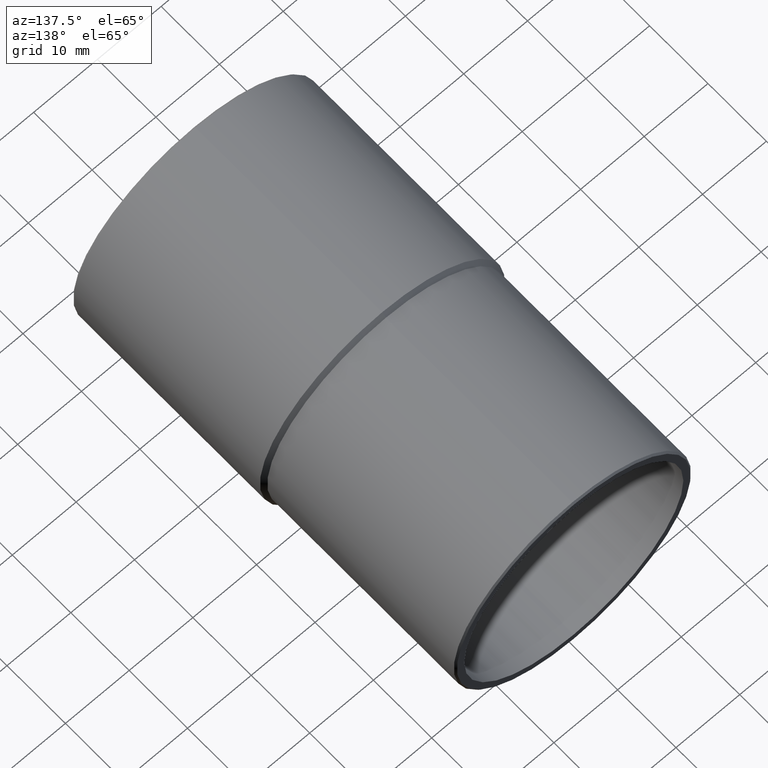
[diagram: clean part render]
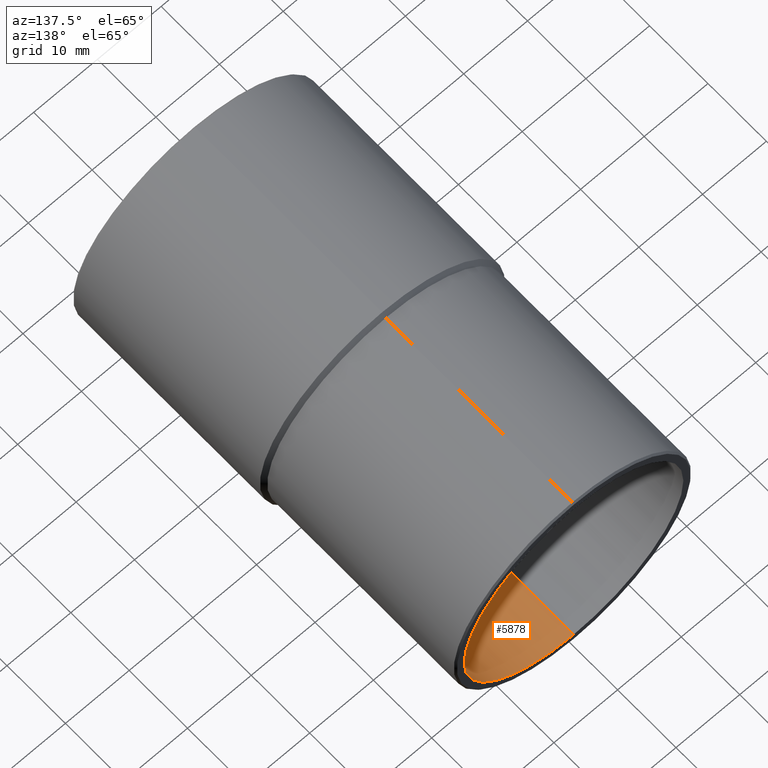
[diagram: same view with one face highlighted and labeled with its STEP entity id]
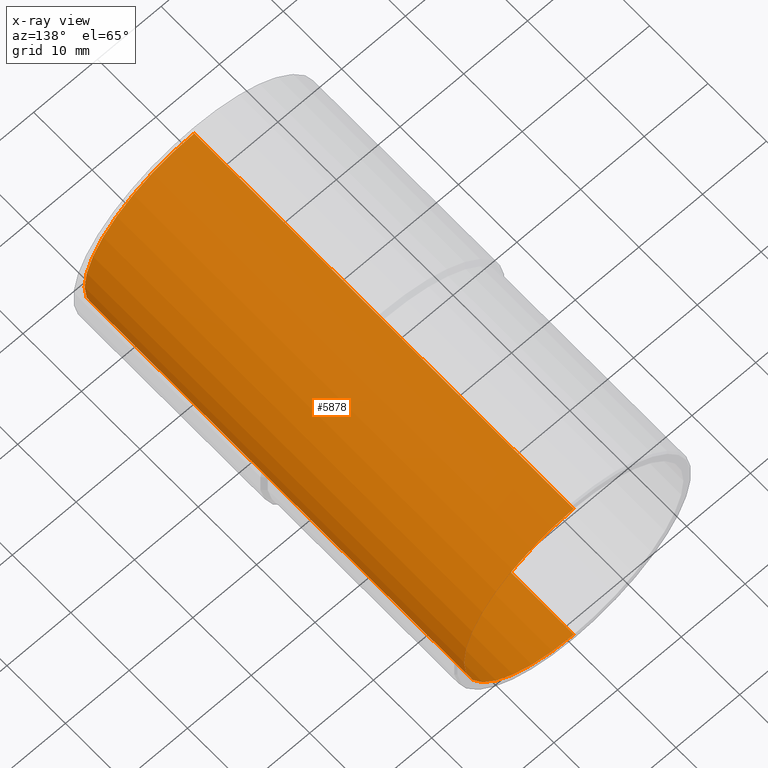
[diagram: x-ray of the same camera — body ghosted, the highlighted face saturated]
A machine part, auxiliary view. The second image highlights one B-rep face of the part: STEP entity #5878.
The next image is the same camera in x-ray: the body ghosted, the highlighted face saturated — about 0% of this face is hidden behind the body in this view.
In plain terms, the highlighted cylindrical surface (partial cylindrical patch) has radius 17.2 mm, axis along (-0, -1, -0).
Its self-contained STEP definition (entity closure, byte-faithful):
#394 = DIRECTION ( 'NONE',  ( 0.0000000000000000000, 0.0000000000000000000, -1.000000000000000000 ) ) ;
#420 = DIRECTION ( 'NONE',  ( 0.0000000000000000000, 0.0000000000000000000, -1.000000000000000000 ) ) ;
#633 = VERTEX_POINT ( 'NONE', #4557 ) ;
#870 = VERTEX_POINT ( 'NONE', #5437 ) ;
#2295 = CARTESIAN_POINT ( 'NONE',  ( 0.0000000000000000000, 32.50000000000000000, 0.0000000000000000000 ) ) ;
#2316 = VERTEX_POINT ( 'NONE', #8674 ) ;
#2327 = LINE ( 'NONE', #9421, #7053 ) ;
#2469 = ORIENTED_EDGE ( 'NONE', *, *, #5700, .T. ) ;
#2515 = DIRECTION ( 'NONE',  ( -0.0000000000000000000, -1.000000000000000000, -0.0000000000000000000 ) ) ;
#2612 = AXIS2_PLACEMENT_3D ( 'NONE', #3056, #8344, #420 ) ;
#3056 = CARTESIAN_POINT ( 'NONE',  ( 0.0000000000000000000, 32.50000000000000000, 0.0000000000000000000 ) ) ;
#3173 = DIRECTION ( 'NONE',  ( 0.0000000000000000000, 0.0000000000000000000, -1.000000000000000000 ) ) ;
#4025 = EDGE_CURVE ( 'NONE', #870, #2316, #2327, .T. ) ;
#4074 = VERTEX_POINT ( 'NONE', #6081 ) ;
#4343 = ORIENTED_EDGE ( 'NONE', *, *, #10457, .F. ) ;
#4557 = CARTESIAN_POINT ( 'NONE',  ( 0.0000000000000000000, 32.50000000000000000, -17.19999999999999900 ) ) ;
#4604 = DIRECTION ( 'NONE',  ( -0.0000000000000000000, -1.000000000000000000, -0.0000000000000000000 ) ) ;
#4646 = CARTESIAN_POINT ( 'NONE',  ( 0.0000000000000000000, 32.50000000000000000, -17.19999999999999900 ) ) ;
#4697 = ORIENTED_EDGE ( 'NONE', *, *, #11219, .T. ) ;
#5437 = CARTESIAN_POINT ( 'NONE',  ( 2.106392494533447400E-015, 32.50000000000000000, 17.19999999999999900 ) ) ;
#5550 = CIRCLE ( 'NONE', #10279, 17.19999999999999900 ) ;
#5681 = DIRECTION ( 'NONE',  ( 0.0000000000000000000, -1.000000000000000000, 0.0000000000000000000 ) ) ;
#5700 = EDGE_CURVE ( 'NONE', #633, #4074, #8109, .T. ) ;
#5812 = ORIENTED_EDGE ( 'NONE', *, *, #4025, .F. ) ;
#5878 = ADVANCED_FACE ( 'NONE', ( #9348 ), #11400, .F. ) ;
#6081 = CARTESIAN_POINT ( 'NONE',  ( 0.0000000000000000000, -32.50000000000000000, -17.19999999999999900 ) ) ;
#6963 = AXIS2_PLACEMENT_3D ( 'NONE', #2295, #8451, #3173 ) ;
#7053 = VECTOR ( 'NONE', #2515, 1000.000000000000000 ) ;
#7855 = VECTOR ( 'NONE', #4604, 1000.000000000000000 ) ;
#8109 = LINE ( 'NONE', #4646, #7855 ) ;
#8344 = DIRECTION ( 'NONE',  ( -0.0000000000000000000, -1.000000000000000000, -0.0000000000000000000 ) ) ;
#8451 = DIRECTION ( 'NONE',  ( 0.0000000000000000000, -1.000000000000000000, 0.0000000000000000000 ) ) ;
#8674 = CARTESIAN_POINT ( 'NONE',  ( 2.106392494533447400E-015, -32.50000000000000000, 17.19999999999999900 ) ) ;
#9348 = FACE_OUTER_BOUND ( 'NONE', #10613, .T. ) ;
#9421 = CARTESIAN_POINT ( 'NONE',  ( 2.106392494533447400E-015, 32.50000000000000000, 17.19999999999999900 ) ) ;
#10279 = AXIS2_PLACEMENT_3D ( 'NONE', #10945, #5681, #394 ) ;
#10457 = EDGE_CURVE ( 'NONE', #633, #870, #10922, .T. ) ;
#10613 = EDGE_LOOP ( 'NONE', ( #5812, #4343, #2469, #4697 ) ) ;
#10922 = CIRCLE ( 'NONE', #6963, 17.19999999999999900 ) ;
#10945 = CARTESIAN_POINT ( 'NONE',  ( 0.0000000000000000000, -32.50000000000000000, 0.0000000000000000000 ) ) ;
#11219 = EDGE_CURVE ( 'NONE', #4074, #2316, #5550, .T. ) ;
#11400 = CYLINDRICAL_SURFACE ( 'NONE', #2612, 17.19999999999999900 ) ;